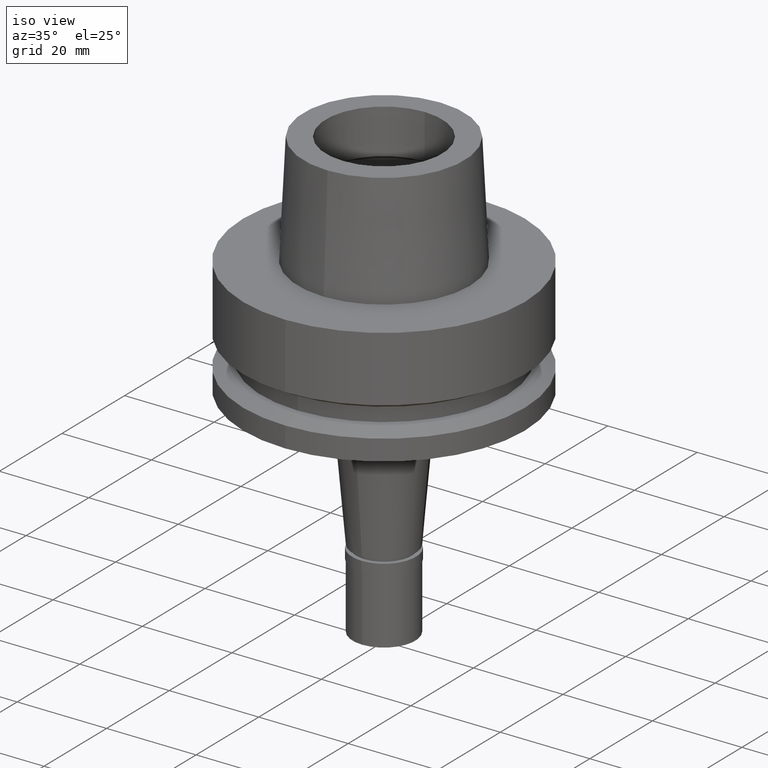
[diagram: clean part render]
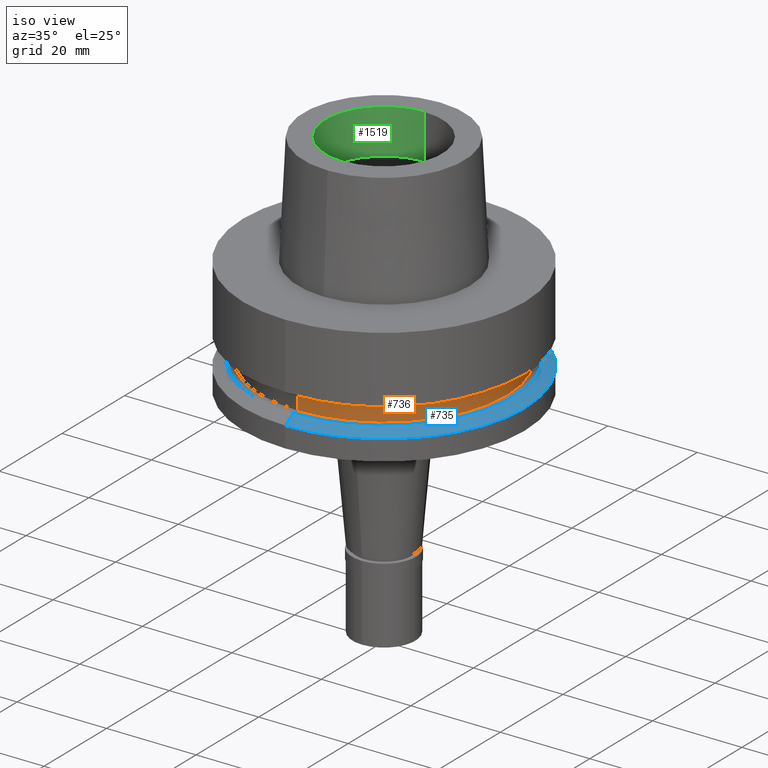
[diagram: same view with three faces highlighted in distinct colors, each labeled with its STEP entity id]
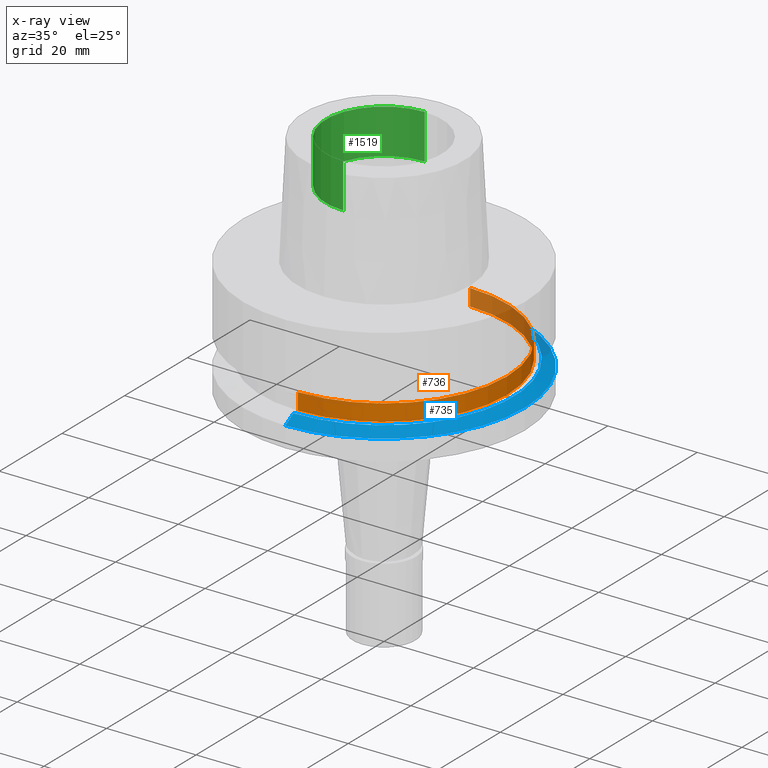
[diagram: x-ray of the same camera — body ghosted, the three highlighted faces saturated]
A machine part, iso view with three faces highlighted in distinct colors.
The next image is the same camera in x-ray (body ghosted, the three faces saturated) — at least one of them is partly hidden behind the body in this view.
Their STEP definitions:

[orange] entity #736 — the highlighted cylindrical surface (partial cylindrical patch) has radius 27.5 mm, axis along (0, 0, -1).
#46 = ORIENTED_EDGE ( 'NONE', *, *, #1502, .F. ) ;
#465 = VERTEX_POINT ( 'NONE', #1675 ) ;
#516 = EDGE_CURVE ( 'NONE', #909, #762, #726, .T. ) ;
#567 = DIRECTION ( 'NONE',  ( 0.0000000000000000000, 0.0000000000000000000, 1.000000000000000000 ) ) ;
#577 = AXIS2_PLACEMENT_3D ( 'NONE', #2003, #567, #1392 ) ;
#579 = FACE_OUTER_BOUND ( 'NONE', #2506, .T. ) ;
#634 = CARTESIAN_POINT ( 'NONE',  ( 0.0000000000000000000, 27.50000000000000000, -19.87500000000000000 ) ) ;
#712 = VECTOR ( 'NONE', #1102, 1000.000000000000000 ) ;
#726 = LINE ( 'NONE', #1154, #712 ) ;
#736 = ADVANCED_FACE ( 'NONE', ( #579 ), #2645, .T. ) ;
#762 = VERTEX_POINT ( 'NONE', #960 ) ;
#803 = AXIS2_PLACEMENT_3D ( 'NONE', #1608, #987, #2411 ) ;
#804 = ORIENTED_EDGE ( 'NONE', *, *, #516, .T. ) ;
#825 = DIRECTION ( 'NONE',  ( 0.0000000000000000000, 1.000000000000000000, 0.0000000000000000000 ) ) ;
#861 = VECTOR ( 'NONE', #2207, 1000.000000000000000 ) ;
#909 = VERTEX_POINT ( 'NONE', #2304 ) ;
#953 = VERTEX_POINT ( 'NONE', #634 ) ;
#960 = CARTESIAN_POINT ( 'NONE',  ( 0.0000000000000000000, -27.50000000000000000, -19.87500000000000000 ) ) ;
#987 = DIRECTION ( 'NONE',  ( 0.0000000000000000000, 0.0000000000000000000, -1.000000000000000000 ) ) ;
#1026 = DIRECTION ( 'NONE',  ( 0.0000000000000000000, 0.0000000000000000000, -1.000000000000000000 ) ) ;
#1102 = DIRECTION ( 'NONE',  ( 0.0000000000000000000, 0.0000000000000000000, -1.000000000000000000 ) ) ;
#1154 = CARTESIAN_POINT ( 'NONE',  ( 0.0000000000000000000, -27.50000000000000000, -16.12500000000000000 ) ) ;
#1164 = ORIENTED_EDGE ( 'NONE', *, *, #1805, .T. ) ;
#1392 = DIRECTION ( 'NONE',  ( 0.0000000000000000000, -1.000000000000000000, 0.0000000000000000000 ) ) ;
#1456 = EDGE_CURVE ( 'NONE', #465, #909, #2124, .T. ) ;
#1502 = EDGE_CURVE ( 'NONE', #465, #953, #1746, .T. ) ;
#1608 = CARTESIAN_POINT ( 'NONE',  ( 0.0000000000000000000, 1.589591545292999879E-14, 29.80000000000000071 ) ) ;
#1614 = CIRCLE ( 'NONE', #577, 27.50000000000000000 ) ;
#1675 = CARTESIAN_POINT ( 'NONE',  ( 0.0000000000000000000, 27.50000000000000000, -16.12500000000000000 ) ) ;
#1734 = AXIS2_PLACEMENT_3D ( 'NONE', #2046, #1026, #825 ) ;
#1746 = LINE ( 'NONE', #2412, #861 ) ;
#1805 = EDGE_CURVE ( 'NONE', #762, #953, #1614, .T. ) ;
#2003 = CARTESIAN_POINT ( 'NONE',  ( 0.0000000000000000000, 1.589591545292999879E-14, -19.87500000000000000 ) ) ;
#2046 = CARTESIAN_POINT ( 'NONE',  ( 0.0000000000000000000, 1.589591545292999879E-14, -16.12500000000000000 ) ) ;
#2124 = CIRCLE ( 'NONE', #1734, 27.50000000000000000 ) ;
#2207 = DIRECTION ( 'NONE',  ( 0.0000000000000000000, 0.0000000000000000000, -1.000000000000000000 ) ) ;
#2304 = CARTESIAN_POINT ( 'NONE',  ( 0.0000000000000000000, -27.50000000000000000, -16.12500000000000000 ) ) ;
#2367 = ORIENTED_EDGE ( 'NONE', *, *, #1456, .T. ) ;
#2411 = DIRECTION ( 'NONE',  ( 0.0000000000000000000, -1.000000000000000000, 0.0000000000000000000 ) ) ;
#2412 = CARTESIAN_POINT ( 'NONE',  ( 0.0000000000000000000, 27.50000000000000000, -16.12500000000000000 ) ) ;
#2506 = EDGE_LOOP ( 'NONE', ( #2367, #804, #1164, #46 ) ) ;
#2645 = CYLINDRICAL_SURFACE ( 'NONE', #803, 27.50000000000000000 ) ;

[blue] entity #735 — the highlighted conical surface has half-angle 60 deg.
#8 = CARTESIAN_POINT ( 'NONE',  ( 0.0000000000000000000, -31.50000000000000000, -21.37749907476000288 ) ) ;
#56 = DIRECTION ( 'NONE',  ( 0.0000000000000000000, -0.8660254037843856390, -0.5000000000000918154 ) ) ;
#61 = AXIS2_PLACEMENT_3D ( 'NONE', #2058, #800, #2427 ) ;
#105 = CONICAL_SURFACE ( 'NONE', #2143, 30.19879763209999979, 1.047197551196400456 ) ;
#161 = EDGE_CURVE ( 'NONE', #1204, #985, #1233, .T. ) ;
#237 = EDGE_CURVE ( 'NONE', #2049, #1952, #1665, .T. ) ;
#378 = DIRECTION ( 'NONE',  ( 0.0000000000000000000, 0.8660254037843856390, -0.5000000000000918154 ) ) ;
#435 = ORIENTED_EDGE ( 'NONE', *, *, #1203, .F. ) ;
#467 = EDGE_LOOP ( 'NONE', ( #536, #2351, #1259, #435 ) ) ;
#476 = CARTESIAN_POINT ( 'NONE',  ( 0.0000000000000000000, 31.50000000000000000, -21.37749907476000288 ) ) ;
#481 = LINE ( 'NONE', #2289, #1101 ) ;
#499 = AXIS2_PLACEMENT_3D ( 'NONE', #2637, #2657, #775 ) ;
#536 = ORIENTED_EDGE ( 'NONE', *, *, #161, .T. ) ;
#555 = CARTESIAN_POINT ( 'NONE',  ( 0.0000000000000000000, 0.0000000000000000000, -20.62624953738000144 ) ) ;
#735 = ADVANCED_FACE ( 'NONE', ( #786 ), #105, .T. ) ;
#775 = DIRECTION ( 'NONE',  ( 0.0000000000000000000, 1.000000000000000000, 0.0000000000000000000 ) ) ;
#786 = FACE_OUTER_BOUND ( 'NONE', #467, .T. ) ;
#800 = DIRECTION ( 'NONE',  ( 0.0000000000000000000, 0.0000000000000000000, -1.000000000000000000 ) ) ;
#966 = LINE ( 'NONE', #2443, #2217 ) ;
#985 = VERTEX_POINT ( 'NONE', #2159 ) ;
#1101 = VECTOR ( 'NONE', #56, 1000.000000000000000 ) ;
#1174 = CARTESIAN_POINT ( 'NONE',  ( 0.0000000000000000000, 28.89759526419000224, -19.87500000000000000 ) ) ;
#1203 = EDGE_CURVE ( 'NONE', #1204, #2049, #966, .T. ) ;
#1204 = VERTEX_POINT ( 'NONE', #1174 ) ;
#1233 = CIRCLE ( 'NONE', #61, 28.89759526419000224 ) ;
#1259 = ORIENTED_EDGE ( 'NONE', *, *, #237, .F. ) ;
#1581 = DIRECTION ( 'NONE',  ( 0.0000000000000000000, -1.000000000000000000, 0.0000000000000000000 ) ) ;
#1665 = CIRCLE ( 'NONE', #499, 31.50000000000000000 ) ;
#1952 = VERTEX_POINT ( 'NONE', #8 ) ;
#2049 = VERTEX_POINT ( 'NONE', #476 ) ;
#2058 = CARTESIAN_POINT ( 'NONE',  ( 0.0000000000000000000, 0.0000000000000000000, -19.87500000000000000 ) ) ;
#2143 = AXIS2_PLACEMENT_3D ( 'NONE', #555, #2436, #1581 ) ;
#2159 = CARTESIAN_POINT ( 'NONE',  ( 0.0000000000000000000, -28.89759526419000224, -19.87500000000000000 ) ) ;
#2178 = EDGE_CURVE ( 'NONE', #985, #1952, #481, .T. ) ;
#2217 = VECTOR ( 'NONE', #378, 1000.000000000000000 ) ;
#2289 = CARTESIAN_POINT ( 'NONE',  ( 0.0000000000000000000, -28.89759526419000224, -19.87500000000000000 ) ) ;
#2351 = ORIENTED_EDGE ( 'NONE', *, *, #2178, .T. ) ;
#2427 = DIRECTION ( 'NONE',  ( 0.0000000000000000000, 1.000000000000000000, 0.0000000000000000000 ) ) ;
#2436 = DIRECTION ( 'NONE',  ( 0.0000000000000000000, 0.0000000000000000000, -1.000000000000000000 ) ) ;
#2443 = CARTESIAN_POINT ( 'NONE',  ( 0.0000000000000000000, 28.89759526419000224, -19.87500000000000000 ) ) ;
#2637 = CARTESIAN_POINT ( 'NONE',  ( 0.0000000000000000000, 0.0000000000000000000, -21.37749907476000288 ) ) ;
#2657 = DIRECTION ( 'NONE',  ( 0.0000000000000000000, 0.0000000000000000000, -1.000000000000000000 ) ) ;

[green] entity #1519 — the highlighted cylindrical surface (partial cylindrical patch) has radius 13 mm, axis along (0, 0, -1).
#133 = DIRECTION ( 'NONE',  ( 0.0000000000000000000, -1.000000000000000000, 0.0000000000000000000 ) ) ;
#269 = CARTESIAN_POINT ( 'NONE',  ( 0.0000000000000000000, -13.00000000000000000, 14.99602540378000093 ) ) ;
#294 = VERTEX_POINT ( 'NONE', #2326 ) ;
#307 = AXIS2_PLACEMENT_3D ( 'NONE', #2035, #2639, #133 ) ;
#498 = VERTEX_POINT ( 'NONE', #269 ) ;
#510 = CYLINDRICAL_SURFACE ( 'NONE', #956, 13.00000000000000000 ) ;
#610 = EDGE_CURVE ( 'NONE', #811, #880, #2535, .T. ) ;
#662 = LINE ( 'NONE', #1493, #2669 ) ;
#811 = VERTEX_POINT ( 'NONE', #2690 ) ;
#837 = AXIS2_PLACEMENT_3D ( 'NONE', #928, #2366, #1760 ) ;
#880 = VERTEX_POINT ( 'NONE', #1054 ) ;
#883 = DIRECTION ( 'NONE',  ( 0.0000000000000000000, -9.641785417556999606E-14, 1.000000000000000000 ) ) ;
#919 = EDGE_CURVE ( 'NONE', #498, #880, #662, .T. ) ;
#928 = CARTESIAN_POINT ( 'NONE',  ( 0.0000000000000000000, 1.589591545292999879E-14, 25.00000000000000000 ) ) ;
#956 = AXIS2_PLACEMENT_3D ( 'NONE', #1130, #1338, #1992 ) ;
#1046 = LINE ( 'NONE', #1278, #2220 ) ;
#1054 = CARTESIAN_POINT ( 'NONE',  ( 0.0000000000000000000, -13.00000000000000000, 25.00000000000000000 ) ) ;
#1130 = CARTESIAN_POINT ( 'NONE',  ( 0.0000000000000000000, 1.589591545292999879E-14, 29.80000000000000071 ) ) ;
#1229 = EDGE_CURVE ( 'NONE', #498, #294, #1397, .T. ) ;
#1278 = CARTESIAN_POINT ( 'NONE',  ( 0.0000000000000000000, 13.00000000000000000, 14.99602540378000093 ) ) ;
#1338 = DIRECTION ( 'NONE',  ( 0.0000000000000000000, 0.0000000000000000000, -1.000000000000000000 ) ) ;
#1341 = ORIENTED_EDGE ( 'NONE', *, *, #1855, .T. ) ;
#1397 = CIRCLE ( 'NONE', #307, 13.00000000000000000 ) ;
#1493 = CARTESIAN_POINT ( 'NONE',  ( 0.0000000000000000000, -13.00000000000000000, 14.99602540378000093 ) ) ;
#1519 = ADVANCED_FACE ( 'NONE', ( #2197 ), #510, .F. ) ;
#1624 = EDGE_LOOP ( 'NONE', ( #2133, #1668, #2285, #1341 ) ) ;
#1668 = ORIENTED_EDGE ( 'NONE', *, *, #919, .F. ) ;
#1760 = DIRECTION ( 'NONE',  ( 0.0000000000000000000, 1.000000000000000000, 0.0000000000000000000 ) ) ;
#1855 = EDGE_CURVE ( 'NONE', #294, #811, #1046, .T. ) ;
#1879 = DIRECTION ( 'NONE',  ( 0.0000000000000000000, 9.677298439352999611E-14, 1.000000000000000000 ) ) ;
#1992 = DIRECTION ( 'NONE',  ( 0.0000000000000000000, -1.000000000000000000, 0.0000000000000000000 ) ) ;
#2035 = CARTESIAN_POINT ( 'NONE',  ( 0.0000000000000000000, 1.397689391867000092E-14, 14.99602540378000093 ) ) ;
#2133 = ORIENTED_EDGE ( 'NONE', *, *, #610, .T. ) ;
#2197 = FACE_OUTER_BOUND ( 'NONE', #1624, .T. ) ;
#2220 = VECTOR ( 'NONE', #883, 1000.000000000000000 ) ;
#2285 = ORIENTED_EDGE ( 'NONE', *, *, #1229, .T. ) ;
#2326 = CARTESIAN_POINT ( 'NONE',  ( 0.0000000000000000000, 13.00000000000000000, 14.99602540378000093 ) ) ;
#2366 = DIRECTION ( 'NONE',  ( 0.0000000000000000000, 0.0000000000000000000, 1.000000000000000000 ) ) ;
#2535 = CIRCLE ( 'NONE', #837, 13.00000000000000000 ) ;
#2639 = DIRECTION ( 'NONE',  ( 0.0000000000000000000, 0.0000000000000000000, -1.000000000000000000 ) ) ;
#2669 = VECTOR ( 'NONE', #1879, 1000.000000000000000 ) ;
#2690 = CARTESIAN_POINT ( 'NONE',  ( 0.0000000000000000000, 13.00000000000000000, 25.00000000000000000 ) ) ;